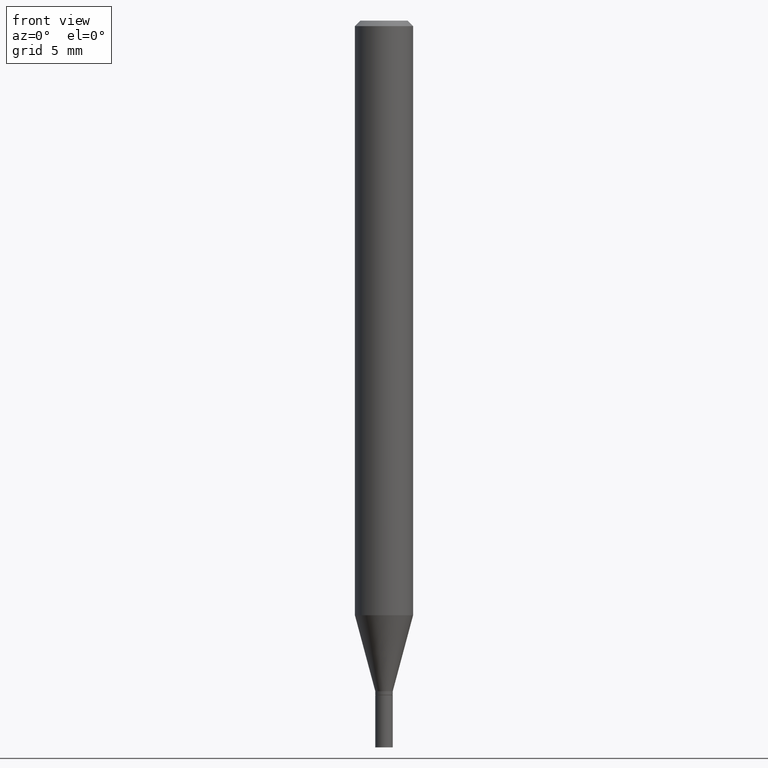
[diagram: clean part render]
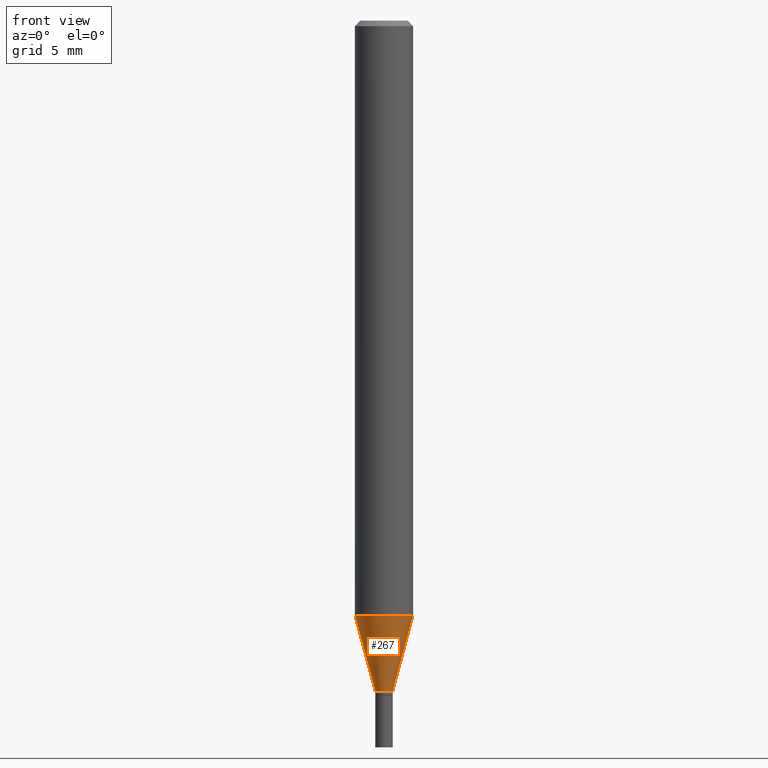
[diagram: same view with one face highlighted and labeled with its STEP entity id]
A machine part, front view. The second image highlights one B-rep face of the part: STEP entity #267.
In plain terms, the highlighted conical surface has half-angle 15 deg.
Its self-contained STEP definition (entity closure, byte-faithful):
#5 = CARTESIAN_POINT ( 'NONE',  ( 3.938861333544927198E-29, -5.623650077882775197E-15, -1.610677397962577695 ) ) ;
#28 = ORIENTED_EDGE ( 'NONE', *, *, #139, .F. ) ;
#30 = LINE ( 'NONE', #456, #299 ) ;
#41 = EDGE_CURVE ( 'NONE', #277, #81, #120, .T. ) ;
#42 = CARTESIAN_POINT ( 'NONE',  ( 0.07875000000000001443, -6.173558388750569332E-15, -1.610677397962577695 ) ) ;
#51 = ORIENTED_EDGE ( 'NONE', *, *, #41, .T. ) ;
#79 = EDGE_LOOP ( 'NONE', ( #28, #51, #303, #400 ) ) ;
#81 = VERTEX_POINT ( 'NONE', #424 ) ;
#92 = DIRECTION ( 'NONE',  ( 1.000000000000000000, -6.982962677686282488E-15, 0.000000000000000000 ) ) ;
#94 = FACE_OUTER_BOUND ( 'NONE', #79, .T. ) ;
#120 = CIRCLE ( 'NONE', #464, 0.02360000000000019721 ) ;
#127 = DIRECTION ( 'NONE',  ( 1.000000000000000000, -6.982962677686261977E-15, 0.000000000000000000 ) ) ;
#139 = EDGE_CURVE ( 'NONE', #277, #266, #30, .T. ) ;
#140 = DIRECTION ( 'NONE',  ( -2.445468806185136597E-29, 3.491481338843145583E-15, 1.000000000000000000 ) ) ;
#154 = DIRECTION ( 'NONE',  ( -2.445468806185136597E-29, 3.491481338843145583E-15, 1.000000000000000000 ) ) ;
#167 = DIRECTION ( 'NONE',  ( -2.445468806185136597E-29, 3.491481338843145583E-15, 1.000000000000000000 ) ) ;
#169 = VECTOR ( 'NONE', #327, 39.37007874015747433 ) ;
#179 = DIRECTION ( 'NONE',  ( 1.000000000000000000, -6.982962677686282488E-15, 0.000000000000000000 ) ) ;
#222 = CIRCLE ( 'NONE', #347, 0.07875000000000000056 ) ;
#223 = AXIS2_PLACEMENT_3D ( 'NONE', #352, #167, #179 ) ;
#261 = LINE ( 'NONE', #425, #169 ) ;
#266 = VERTEX_POINT ( 'NONE', #324 ) ;
#267 = ADVANCED_FACE ( 'NONE', ( #94 ), #422, .T. ) ;
#268 = VERTEX_POINT ( 'NONE', #42 ) ;
#277 = VERTEX_POINT ( 'NONE', #463 ) ;
#289 = EDGE_CURVE ( 'NONE', #266, #268, #222, .T. ) ;
#299 = VECTOR ( 'NONE', #349, 39.37007874015747433 ) ;
#303 = ORIENTED_EDGE ( 'NONE', *, *, #370, .T. ) ;
#311 = CARTESIAN_POINT ( 'NONE',  ( 4.442194086435300812E-29, -6.342275852008574901E-15, -1.816500000000000226 ) ) ;
#324 = CARTESIAN_POINT ( 'NONE',  ( -0.07875000000000001443, -5.064097673471695607E-15, -1.610677397962577695 ) ) ;
#327 = DIRECTION ( 'NONE',  ( 0.2588190451025213501, 1.565188264969621968E-15, 0.9659258262890682012 ) ) ;
#347 = AXIS2_PLACEMENT_3D ( 'NONE', #5, #154, #127 ) ;
#349 = DIRECTION ( 'NONE',  ( -0.2588190451025213501, 5.211531920934551042E-15, 0.9659258262890682012 ) ) ;
#352 = CARTESIAN_POINT ( 'NONE',  ( 4.442194086435300812E-29, -6.342275852008574901E-15, -1.816500000000000226 ) ) ;
#370 = EDGE_CURVE ( 'NONE', #81, #268, #261, .T. ) ;
#400 = ORIENTED_EDGE ( 'NONE', *, *, #289, .F. ) ;
#422 = CONICAL_SURFACE ( 'NONE', #223, 0.02360000000000019721, 0.2617993877991500740 ) ;
#424 = CARTESIAN_POINT ( 'NONE',  ( 0.02360000000000019721, -6.507073771201971937E-15, -1.816500000000000226 ) ) ;
#425 = CARTESIAN_POINT ( 'NONE',  ( 0.02360000000000019721, -6.507073771201971937E-15, -1.816500000000000226 ) ) ;
#456 = CARTESIAN_POINT ( 'NONE',  ( -0.02360000000000019721, -6.174587766369189215E-15, -1.816500000000000226 ) ) ;
#463 = CARTESIAN_POINT ( 'NONE',  ( -0.02360000000000019721, -5.619342719920443200E-15, -1.816500000000000226 ) ) ;
#464 = AXIS2_PLACEMENT_3D ( 'NONE', #311, #140, #92 ) ;